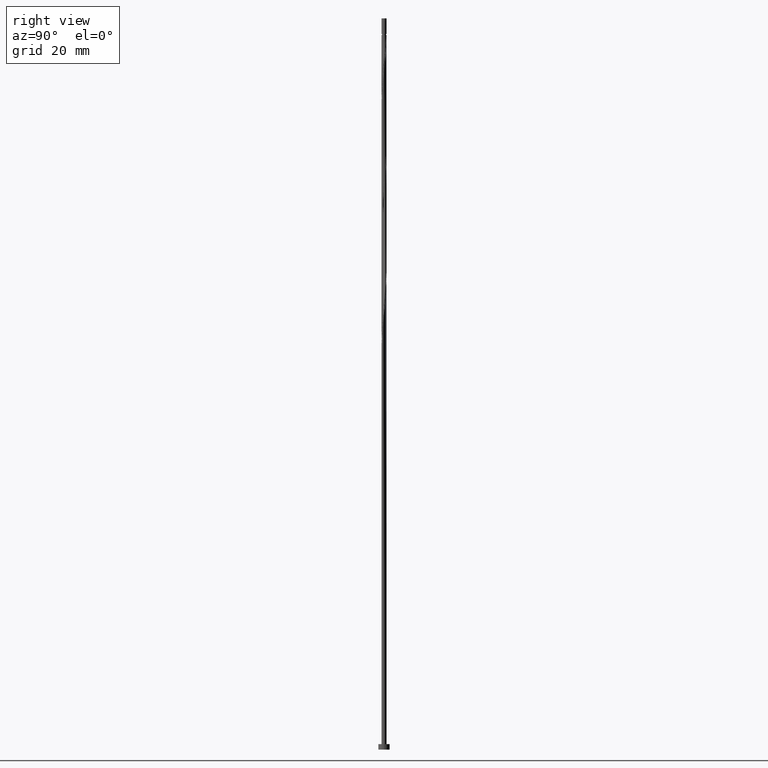
[diagram: clean part render]
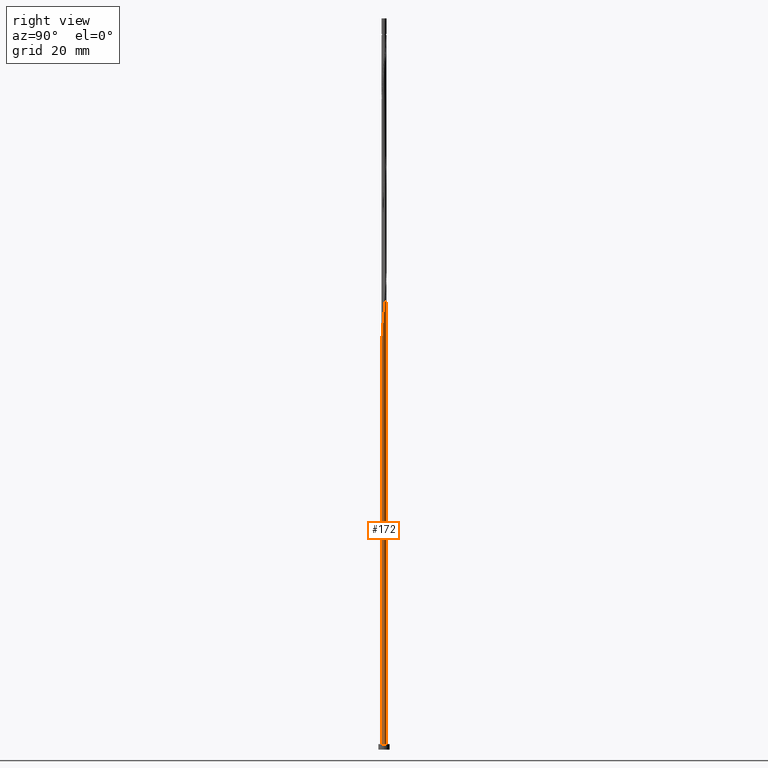
[diagram: same view with one face highlighted and labeled with its STEP entity id]
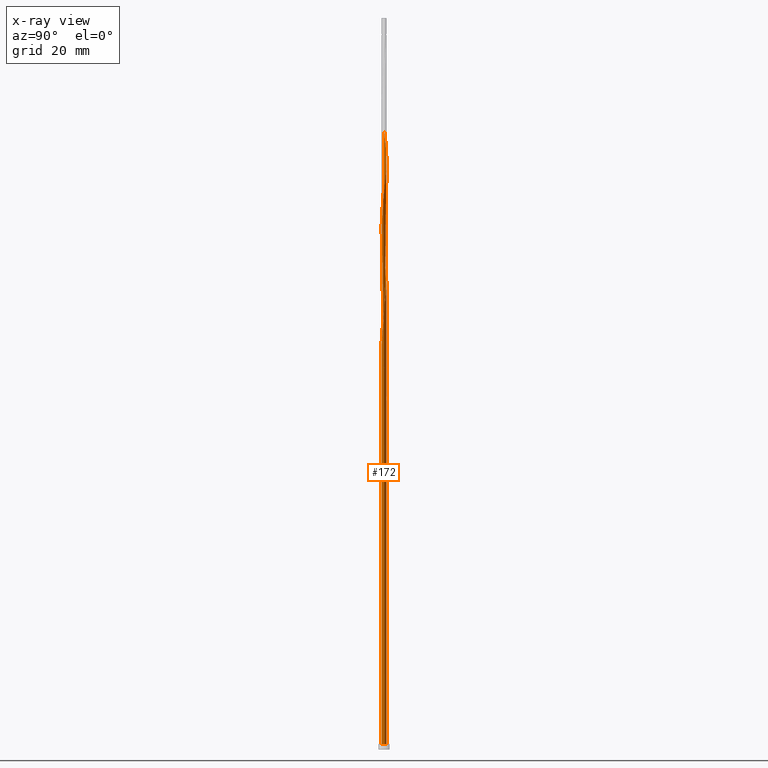
[diagram: x-ray of the same camera — body ghosted, the highlighted face saturated]
A machine part, right view. The second image highlights one B-rep face of the part: STEP entity #172.
The next image is the same camera in x-ray: the body ghosted, the highlighted face saturated — about 0% of this face is hidden behind the body in this view.
In plain terms, the highlighted cylindrical surface (bore or boss wall) has radius 0.55 mm, axis along (-0, -0, -1).
Its self-contained STEP definition (entity closure, byte-faithful):
#12 = CARTESIAN_POINT ( 'NONE',  ( -0.5490899195553593515, -0.03162689113223173670, 82.41916000802993381 ) ) ;
#29 = ORIENTED_EDGE ( 'NONE', *, *, #606, .T. ) ;
#32 = CARTESIAN_POINT ( 'NONE',  ( 0.4448250463926262666, 0.3234666568624947058, 98.17673576560569870 ) ) ;
#52 = CARTESIAN_POINT ( 'NONE',  ( -0.5179375947922877366, 0.1850422867908333435, 82.41916000802994802 ) ) ;
#69 = CARTESIAN_POINT ( 'NONE',  ( -0.4790226229432441585, 0.2702541890675806413, 106.6615842504541689 ) ) ;
#71 = CARTESIAN_POINT ( 'NONE',  ( -0.5357582445995461295, 0.1243507271535393560, 134.5403721292420585 ) ) ;
#86 = CARTESIAN_POINT ( 'NONE',  ( -0.1869451185450198005, 0.5232636644121024805, 76.96461455348449476 ) ) ;
#91 = CARTESIAN_POINT ( 'NONE',  ( 0.000000000000000000, 0.000000000000000000, 1.199999999999999956 ) ) ;
#124 = CARTESIAN_POINT ( 'NONE',  ( 0.5445426591040022357, 0.1105741030157383065, 123.0252206140905713 ) ) ;
#132 = LINE ( 'NONE', #224, #1389 ) ;
#161 = CARTESIAN_POINT ( 'NONE',  ( -0.5490899195553592405, 0.03162689113223179915, 83.63128122015115196 ) ) ;
#169 = CARTESIAN_POINT ( 'NONE',  ( -0.2568690281587664437, 0.4863314737632882800, 130.9040084928784609 ) ) ;
#172 = ADVANCED_FACE ( 'NONE', ( #1059 ), #969, .T. ) ;
#191 = CARTESIAN_POINT ( 'NONE',  ( -0.03195211761843817083, 0.5547363355878993652, 102.4191600080299764 ) ) ;
#199 = CARTESIAN_POINT ( 'NONE',  ( 0.1094486180817291210, 0.5390000000000005898, 76.35855394742387148 ) ) ;
#205 = DIRECTION ( 'NONE',  ( 1.000000000000000000, 0.000000000000000000, 0.000000000000000000 ) ) ;
#207 = CARTESIAN_POINT ( 'NONE',  ( -0.4448250463926262110, -0.3234666568624949279, 84.84340243227237011 ) ) ;
#209 =( BOUNDED_CURVE ( )  B_SPLINE_CURVE ( 2, ( #617, #388, #161, #1102, #52, #1478, #1368, #1350, #288, #487, #974, #625, #380, #748, #1232 ),
 .UNSPECIFIED., .F., .T. ) 
 B_SPLINE_CURVE_WITH_KNOTS ( ( 3, 2, 2, 2, 2, 2, 2, 3 ),
 ( 0.9295252162417512176, 0.9318181818181817677, 0.9431818181818182323, 0.9545454545454545858, 0.9659090909090909394, 0.9772727272727272929, 0.9886363636363636465, 1.000000000000000000 ),
 .UNSPECIFIED. ) 
 CURVE ( )  GEOMETRIC_REPRESENTATION_ITEM ( )  RATIONAL_B_SPLINE_CURVE ( ( 0.9061101570136073091, 0.9072237824201895284, 0.9090909090909671253, 0.8998376744372691416, 0.9090909090909671253, 0.8998376744372691416, 0.9090909090909671253, 0.8998376744372691416, 0.9090909090909671253, 0.8998376744372691416, 0.9090909090909671253, 0.8998376744372691416, 0.9090909090909671253, 0.8998376744372691416, 0.9090909090909671253 ) ) 
 REPRESENTATION_ITEM ( '' )  );
#210 = CARTESIAN_POINT ( 'NONE',  ( -0.1094486180817288573, 0.5390000000000008118, 103.0252206140905429 ) ) ;
#224 = CARTESIAN_POINT ( 'NONE',  ( -0.5500000000000000444, 0.000000000000000000, 160.0000000000000284 ) ) ;
#242 = CARTESIAN_POINT ( 'NONE',  ( 0.000000000000000000, 0.000000000000000000, 160.0000000000000284 ) ) ;
#249 = CARTESIAN_POINT ( 'NONE',  ( 0.3356754182106473916, 0.4356856821254376233, 99.38885697772691685 ) ) ;
#256 = CARTESIAN_POINT ( 'NONE',  ( 0.1869451185450196895, -0.5232636644121025915, 90.29794788681783757 ) ) ;
#260 = VERTEX_POINT ( 'NONE', #1190 ) ;
#265 = CARTESIAN_POINT ( 'NONE',  ( -0.2730332741166160426, -0.4839485210918138547, 86.66158425045418312 ) ) ;
#280 = CARTESIAN_POINT ( 'NONE',  ( 0.3267929377725131701, -0.4493992831144739686, 91.51006909893904151 ) ) ;
#288 = CARTESIAN_POINT ( 'NONE',  ( -0.3356754182106476692, 0.4356856821254377343, 79.99491758378749751 ) ) ;
#295 = CARTESIAN_POINT ( 'NONE',  ( -0.5500000000000009326, 5.328367375620320696E-16, 82.17576613478965442 ) ) ;
#299 = CARTESIAN_POINT ( 'NONE',  ( -0.4401659366941124141, 0.3391272445793576673, 132.7221903110602739 ) ) ;
#300 = LINE ( 'NONE', #1513, #1466 ) ;
#304 = CARTESIAN_POINT ( 'NONE',  ( 0.4790226229432441585, -0.2702541890675808633, 119.9949175837875117 ) ) ;
#320 = CARTESIAN_POINT ( 'NONE',  ( -0.1094486180817288851, 0.5390000000000008118, 76.35855394742387148 ) ) ;
#328 = CARTESIAN_POINT ( 'NONE',  ( -0.3267929377725131701, 0.4493992831144739686, 78.17673576560571291 ) ) ;
#335 = CARTESIAN_POINT ( 'NONE',  ( -0.3983175623046793512, -0.3874228431590615029, 85.44946303833299339 ) ) ;
#338 = VERTEX_POINT ( 'NONE', #854 ) ;
#357 = EDGE_CURVE ( 'NONE', #1205, #602, #209, .T. ) ;
#369 = CARTESIAN_POINT ( 'NONE',  ( -0.3983175623046793512, -0.3874228431590615029, 112.1161297049996364 ) ) ;
#380 = CARTESIAN_POINT ( 'NONE',  ( -0.04683866811629520260, 0.5480019517931414841, 77.57067515954510384 ) ) ;
#383 = CARTESIAN_POINT ( 'NONE',  ( 0.03195211761843825410, -0.5547363355878992541, 89.08582667469660521 ) ) ;
#384 = CARTESIAN_POINT ( 'NONE',  ( -0.5500000000000010436, -2.374395286679931804E-16, 135.5090994681229972 ) ) ;
#388 = CARTESIAN_POINT ( 'NONE',  ( -0.5500000000000009326, 0.01582653958810245967, 83.75257708867323458 ) ) ;
#401 = CARTESIAN_POINT ( 'NONE',  ( -0.4790226229432441585, 0.2702541890675806413, 133.3282509171208687 ) ) ;
#428 = CARTESIAN_POINT ( 'NONE',  ( 0.2568690281587662771, -0.4863314737632883356, 117.5706751595451038 ) ) ;
#429 = ORIENTED_EDGE ( 'NONE', *, *, #651, .F. ) ;
#442 = CARTESIAN_POINT ( 'NONE',  ( -0.5490899195553593515, -0.03162689113223173670, 109.0858266746966194 ) ) ;
#449 = CARTESIAN_POINT ( 'NONE',  ( 0.5536371800067164672, -0.04732032075127501347, 121.8130994019693389 ) ) ;
#457 = DIRECTION ( 'NONE',  ( -0.000000000000000000, -0.000000000000000000, -1.000000000000000000 ) ) ;
#466 = CARTESIAN_POINT ( 'NONE',  ( 0.5179375947922879586, 0.1850422867908331770, 123.6312812201511662 ) ) ;
#476 = CARTESIAN_POINT ( 'NONE',  ( -0.04683866811629521648, -0.5480019517931417061, 88.47976606863601035 ) ) ;
#479 = CARTESIAN_POINT ( 'NONE',  ( 0.4913325304805731819, 0.2595104705659281308, 124.2373418262117468 ) ) ;
#487 = CARTESIAN_POINT ( 'NONE',  ( -0.2730332741166158761, 0.4839485210918136326, 79.38885697772690264 ) ) ;
#499 = AXIS2_PLACEMENT_3D ( 'NONE', #91, #800, #205 ) ;
#500 = CARTESIAN_POINT ( 'NONE',  ( -0.1256294538510286940, -0.5412675679983839361, 87.87370546257541548 ) ) ;
#504 = CARTESIAN_POINT ( 'NONE',  ( 0.2730332741166158761, 0.4839485210918138547, 126.6615842504542115 ) ) ;
#510 = CARTESIAN_POINT ( 'NONE',  ( 0.2568690281587662771, -0.4863314737632883356, 90.90400849287840401 ) ) ;
#524 = CARTESIAN_POINT ( 'NONE',  ( -0.1094486180817288851, 0.5390000000000008118, 76.35855394742387148 ) ) ;
#525 = CARTESIAN_POINT ( 'NONE',  ( -0.5500000000000011546, 0.06299091006181750663, 135.0231395151516836 ) ) ;
#530 = CARTESIAN_POINT ( 'NONE',  ( -0.03195211761843817083, 0.5547363355878993652, 129.0858266746965910 ) ) ;
#535 = CARTESIAN_POINT ( 'NONE',  ( -0.5179375947922879586, -0.1850422867908333158, 110.2979478868178376 ) ) ;
#537 = CARTESIAN_POINT ( 'NONE',  ( 0.1256294538510287495, 0.5412675679983838251, 127.8737054625754013 ) ) ;
#546 = CARTESIAN_POINT ( 'NONE',  ( -0.3834794372333126811, 0.3942632638469158457, 105.4494630383329792 ) ) ;
#550 = CARTESIAN_POINT ( 'NONE',  ( -0.5357582445995461295, 0.1243507271535393560, 81.20703879590874408 ) ) ;
#561 = DIRECTION ( 'NONE',  ( 0.000000000000000000, -0.000000000000000000, -1.000000000000000000 ) ) ;
#564 = CARTESIAN_POINT ( 'NONE',  ( -0.5178793091923759029, 0.2013811335558037541, 107.2676448565147922 ) ) ;
#596 = CARTESIAN_POINT ( 'NONE',  ( -0.5500000000000009326, -0.01582653958810216130, 82.29786413950785118 ) ) ;
#602 = VERTEX_POINT ( 'NONE', #199 ) ;
#606 = EDGE_CURVE ( 'NONE', #1192, #602, #1146, .T. ) ;
#617 = CARTESIAN_POINT ( 'NONE',  ( -0.5500000000000009326, -4.674006469842387406E-16, 83.87467509339141714 ) ) ;
#622 = CARTESIAN_POINT ( 'NONE',  ( 0.5536371800067164672, -0.04732032075127501347, 95.14643273530268175 ) ) ;
#625 = CARTESIAN_POINT ( 'NONE',  ( -0.1256294538510286662, 0.5412675679983837140, 78.17673576560567028 ) ) ;
#635 = CIRCLE ( 'NONE', #499, 0.5500000000000000444 ) ;
#651 = EDGE_CURVE ( 'NONE', #1209, #338, #300, .T. ) ;
#657 = CARTESIAN_POINT ( 'NONE',  ( -0.3834794372333126811, 0.3942632638469158457, 132.1161297049996506 ) ) ;
#661 = CARTESIAN_POINT ( 'NONE',  ( -0.1993313639838223683, -0.5126080445450988954, 113.9343115231814778 ) ) ;
#666 = CARTESIAN_POINT ( 'NONE',  ( -0.2568690281587664437, 0.4863314737632882800, 104.2373418262117468 ) ) ;
#669 =( BOUNDED_CURVE ( )  B_SPLINE_CURVE ( 2, ( #1435, #596, #12, #1287, #692, #1056, #207, #335, #818, #265, #980, #500, #476, #383, #1228, #256, #510, #280, #859, #866, #988, #753, #760, #622, #997, #1107, #1244, #840, #32, #1335, #249, #726, #1211, #967, #751, #191, #210, #790, #666, #1516, #546, #1166, #69, #564, #1406, #1051, #442, #928, #535, #1080, #954, #369, #1207, #1071, #661, #1290, #1152, #776, #1506, #783, #428, #675, #1025, #1144, #304, #915, #729, #449, #1066, #124, #466, #479, #1238, #1022, #1141, #504, #894, #537, #871, #530, #1148, #1249, #169, #1379, #657, #299, #401, #1268, #71, #525, #384 ),
 .UNSPECIFIED., .F., .T. ) 
 B_SPLINE_CURVE_WITH_KNOTS ( ( 3, 2, 2, 2, 2, 2, 2, 2, 2, 2, 2, 2, 2, 2, 2, 2, 2, 2, 2, 2, 2, 2, 2, 2, 2, 2, 2, 2, 2, 2, 2, 2, 2, 2, 2, 2, 2, 2, 2, 2, 2, 2, 2, 2, 2, 3 ),
 ( 0.05452521624175118292, 0.05681818181818176772, 0.06818181818181823228, 0.07954545454545458583, 0.09090909090909093937, 0.1022727272727272929, 0.1136363636363636465, 0.1250000000000000000, 0.1363636363636363535, 0.1477272727272727071, 0.1590909090909090606, 0.1704545454545454142, 0.1818181818181817677, 0.1931818181818182323, 0.2045454545454545858, 0.2159090909090909394, 0.2272727272727272929, 0.2386363636363636465, 0.2500000000000000000, 0.2613636363636363535, 0.2727272727272727071, 0.2840909090909090606, 0.2954545454545454142, 0.3068181818181817677, 0.3181818181818182323, 0.3295454545454545858, 0.3409090909090909394, 0.3522727272727272929, 0.3636363636363636465, 0.3750000000000000000, 0.3863636363636363535, 0.3977272727272727071, 0.4090909090909090606, 0.4204545454545454142, 0.4318181818181817677, 0.4431818181818182323, 0.4545454545454545858, 0.4659090909090909394, 0.4772727272727272929, 0.4886363636363636465, 0.5000000000000000000, 0.5113636363636363535, 0.5227272727272727071, 0.5340909090909091717, 0.5454545454545454142, 0.5545252162417513286 ),
 .UNSPECIFIED. ) 
 CURVE ( )  GEOMETRIC_REPRESENTATION_ITEM ( )  RATIONAL_B_SPLINE_CURVE ( ( 0.9061101570136075312, 0.9072237824201898615, 0.9090909090909674584, 0.8998376744372692526, 0.9090909090909674584, 0.8998376744372692526, 0.9090909090909674584, 0.8998376744372692526, 0.9090909090909674584, 0.8998376744372692526, 0.9090909090909674584, 0.8998376744372692526, 0.9090909090909674584, 0.8998376744372692526, 0.9090909090909674584, 0.8998376744372692526, 0.9090909090909674584, 0.8998376744372692526, 0.9090909090909674584, 0.8998376744372692526, 0.9090909090909674584, 0.8998376744372692526, 0.9090909090909674584, 0.8998376744372692526, 0.9090909090909674584, 0.8998376744372692526, 0.9090909090909674584, 0.8998376744372692526, 0.9090909090909674584, 0.8998376744372692526, 0.9090909090909674584, 0.8998376744372692526, 0.9090909090909674584, 0.8998376744372692526, 0.9090909090909674584, 0.8998376744372692526, 0.9090909090909674584, 0.8998376744372692526, 0.9090909090909674584, 0.8998376744372692526, 0.9090909090909674584, 0.8998376744372692526, 0.9090909090909674584, 0.8998376744372692526, 0.9090909090909674584, 0.8998376744372692526, 0.9090909090909674584, 0.8998376744372692526, 0.9090909090909674584, 0.8998376744372692526, 0.9090909090909674584, 0.8998376744372692526, 0.9090909090909674584, 0.8998376744372692526, 0.9090909090909674584, 0.8998376744372692526, 0.9090909090909674584, 0.8998376744372692526, 0.9090909090909674584, 0.8998376744372692526, 0.9090909090909674584, 0.8998376744372692526, 0.9090909090909674584, 0.8998376744372692526, 0.9090909090909674584, 0.8998376744372692526, 0.9090909090909674584, 0.8998376744372692526, 0.9090909090909674584, 0.8998376744372692526, 0.9090909090909674584, 0.8998376744372692526, 0.9090909090909674584, 0.8998376744372692526, 0.9090909090909674584, 0.8998376744372692526, 0.9090909090909674584, 0.8998376744372692526, 0.9090909090909674584, 0.8998376744372692526, 0.9090909090909674584, 0.8998376744372692526, 0.9090909090909674584, 0.8998376744372692526, 0.9090909090909674584, 0.8998376744372692526, 0.9090909090909674584, 0.8998376744372692526, 0.9090909090909674584, 0.9017048011080468495, 0.9061101570136075312 ) ) 
 REPRESENTATION_ITEM ( '' )  );
#672 = CARTESIAN_POINT ( 'NONE',  ( 0.000000000000000000, 0.000000000000000000, 76.35855394742387148 ) ) ;
#675 = CARTESIAN_POINT ( 'NONE',  ( 0.3267929377725131701, -0.4493992831144739686, 118.1767357656057129 ) ) ;
#680 = EDGE_CURVE ( 'NONE', #1192, #1209, #1179, .T. ) ;
#685 = CARTESIAN_POINT ( 'NONE',  ( -0.3834794372333126811, 0.3942632638469158457, 78.78279637166629357 ) ) ;
#692 = CARTESIAN_POINT ( 'NONE',  ( -0.5179375947922879586, -0.1850422867908333158, 83.63128122015116617 ) ) ;
#726 = CARTESIAN_POINT ( 'NONE',  ( 0.2730332741166158761, 0.4839485210918138547, 99.99491758378754014 ) ) ;
#729 = CARTESIAN_POINT ( 'NONE',  ( 0.5357582445995461295, -0.1243507271535393283, 121.2070387959087299 ) ) ;
#735 = AXIS2_PLACEMENT_3D ( 'NONE', #242, #1214, #1540 ) ;
#740 = ORIENTED_EDGE ( 'NONE', *, *, #1047, .T. ) ;
#748 = CARTESIAN_POINT ( 'NONE',  ( 0.03195211761843826104, 0.5547363355878989211, 76.96461455348448055 ) ) ;
#751 = CARTESIAN_POINT ( 'NONE',  ( 0.04683866811629528587, 0.5480019517931417061, 101.8130994019693532 ) ) ;
#753 = CARTESIAN_POINT ( 'NONE',  ( 0.5178793091923760139, -0.2013811335558035875, 93.93431152318146360 ) ) ;
#760 = CARTESIAN_POINT ( 'NONE',  ( 0.5357582445995461295, -0.1243507271535393283, 94.54037212924203004 ) ) ;
#776 = CARTESIAN_POINT ( 'NONE',  ( 0.03195211761843825410, -0.5547363355878992541, 115.7524933413632908 ) ) ;
#780 = CARTESIAN_POINT ( 'NONE',  ( -0.5178793091923759029, 0.2013811335558037541, 80.60097818984813500 ) ) ;
#783 = CARTESIAN_POINT ( 'NONE',  ( 0.1869451185450196895, -0.5232636644121025915, 116.9646145534845090 ) ) ;
#790 = CARTESIAN_POINT ( 'NONE',  ( -0.1869451185450198005, 0.5232636644121024805, 103.6312812201511520 ) ) ;
#800 = DIRECTION ( 'NONE',  ( 0.000000000000000000, 0.000000000000000000, 1.000000000000000000 ) ) ;
#818 = CARTESIAN_POINT ( 'NONE',  ( -0.3356754182106476136, -0.4356856821254375678, 86.05552364439360247 ) ) ;
#837 = AXIS2_PLACEMENT_3D ( 'NONE', #1046, #1521, #1315 ) ;
#840 = CARTESIAN_POINT ( 'NONE',  ( 0.4913325304805731819, 0.2595104705659281308, 97.57067515954513226 ) ) ;
#854 = CARTESIAN_POINT ( 'NONE',  ( -0.5500000000000000444, 0.000000000000000000, 1.199999999999999956 ) ) ;
#859 = CARTESIAN_POINT ( 'NONE',  ( 0.3834794372333126811, -0.3942632638469158457, 92.11612970499965058 ) ) ;
#866 = CARTESIAN_POINT ( 'NONE',  ( 0.4401659366941123586, -0.3391272445793577228, 92.72219031106025966 ) ) ;
#871 = CARTESIAN_POINT ( 'NONE',  ( 0.04683866811629528587, 0.5480019517931417061, 128.4797660686359677 ) ) ;
#888 = CARTESIAN_POINT ( 'NONE',  ( -0.5500000000000009326, -4.674006469842387406E-16, 83.87467509339143135 ) ) ;
#894 = CARTESIAN_POINT ( 'NONE',  ( 0.1993313639838222018, 0.5126080445450988954, 127.2676448565148206 ) ) ;
#895 = CARTESIAN_POINT ( 'NONE',  ( -0.4790226229432441585, 0.2702541890675806413, 79.99491758378749751 ) ) ;
#909 = CIRCLE ( 'NONE', #837, 0.5500000000000000444 ) ;
#915 = CARTESIAN_POINT ( 'NONE',  ( 0.5178793091923760139, -0.2013811335558035875, 120.6009781898481208 ) ) ;
#924 = DIRECTION ( 'NONE',  ( -0.000000000000000000, -0.000000000000000000, -1.000000000000000000 ) ) ;
#928 = CARTESIAN_POINT ( 'NONE',  ( -0.5445426591040022357, -0.1105741030157383759, 109.6918872807572285 ) ) ;
#954 = CARTESIAN_POINT ( 'NONE',  ( -0.4448250463926262110, -0.3234666568624949279, 111.5100690989390557 ) ) ;
#967 = CARTESIAN_POINT ( 'NONE',  ( 0.1256294538510287495, 0.5412675679983838251, 101.2070387959087299 ) ) ;
#969 = CYLINDRICAL_SURFACE ( 'NONE', #735, 0.5500000000000000444 ) ;
#974 = CARTESIAN_POINT ( 'NONE',  ( -0.1993313639838222295, 0.5126080445450987844, 78.78279637166627936 ) ) ;
#980 = CARTESIAN_POINT ( 'NONE',  ( -0.1993313639838223683, -0.5126080445450988954, 87.26764485651480641 ) ) ;
#988 = CARTESIAN_POINT ( 'NONE',  ( 0.4790226229432441585, -0.2702541890675808633, 93.32825091712088295 ) ) ;
#997 = CARTESIAN_POINT ( 'NONE',  ( 0.5490899195553593515, 0.03162689113223167425, 95.75249334136326240 ) ) ;
#1016 = CARTESIAN_POINT ( 'NONE',  ( -0.4401659366941124141, 0.3391272445793576673, 79.38885697772691685 ) ) ;
#1022 = CARTESIAN_POINT ( 'NONE',  ( 0.3983175623046794622, 0.3874228431590613364, 125.4494630383329792 ) ) ;
#1025 = CARTESIAN_POINT ( 'NONE',  ( 0.3834794372333126811, -0.3942632638469158457, 118.7827963716663078 ) ) ;
#1039 = CARTESIAN_POINT ( 'NONE',  ( -0.5500000000000011546, 0.06299091006181789520, 81.68980618181836917 ) ) ;
#1046 = CARTESIAN_POINT ( 'NONE',  ( 0.000000000000000000, 0.000000000000000000, 1.199999999999999956 ) ) ;
#1047 = EDGE_CURVE ( 'NONE', #338, #260, #635, .T. ) ;
#1051 = CARTESIAN_POINT ( 'NONE',  ( -0.5536371800067164672, 0.04732032075127503429, 108.4797660686360103 ) ) ;
#1056 = CARTESIAN_POINT ( 'NONE',  ( -0.4913325304805731264, -0.2595104705659282973, 84.23734182621176103 ) ) ;
#1059 = FACE_OUTER_BOUND ( 'NONE', #1090, .T. ) ;
#1066 = CARTESIAN_POINT ( 'NONE',  ( 0.5490899195553593515, 0.03162689113223167425, 122.4191600080299480 ) ) ;
#1071 = CARTESIAN_POINT ( 'NONE',  ( -0.2730332741166160426, -0.4839485210918138547, 113.3282509171208687 ) ) ;
#1077 = ORIENTED_EDGE ( 'NONE', *, *, #1534, .F. ) ;
#1080 = CARTESIAN_POINT ( 'NONE',  ( -0.4913325304805731264, -0.2595104705659282973, 110.9040084928784466 ) ) ;
#1090 = EDGE_LOOP ( 'NONE', ( #1217, #1077, #1507, #740, #1515, #429, #1444, #29, #1358 ) ) ;
#1102 = CARTESIAN_POINT ( 'NONE',  ( -0.5445426591040019026, 0.1105741030157384452, 83.02522061409055709 ) ) ;
#1107 = CARTESIAN_POINT ( 'NONE',  ( 0.5445426591040022357, 0.1105741030157383065, 96.35855394742388569 ) ) ;
#1141 = CARTESIAN_POINT ( 'NONE',  ( 0.3356754182106473916, 0.4356856821254376233, 126.0555236443936025 ) ) ;
#1144 = CARTESIAN_POINT ( 'NONE',  ( 0.4401659366941123586, -0.3391272445793577228, 119.3888569777269453 ) ) ;
#1146 = CIRCLE ( 'NONE', #1275, 0.5500000000000000444 ) ;
#1148 = CARTESIAN_POINT ( 'NONE',  ( -0.1094486180817288573, 0.5390000000000008118, 129.6918872807572143 ) ) ;
#1152 = CARTESIAN_POINT ( 'NONE',  ( -0.04683866811629521648, -0.5480019517931417061, 115.1464327353026675 ) ) ;
#1166 = CARTESIAN_POINT ( 'NONE',  ( -0.4401659366941124141, 0.3391272445793576673, 106.0555236443936025 ) ) ;
#1174 = CARTESIAN_POINT ( 'NONE',  ( -0.5500000000000009326, 5.328367375620320696E-16, 82.17576613478965442 ) ) ;
#1179 =( BOUNDED_CURVE ( )  B_SPLINE_CURVE ( 2, ( #320, #86, #1410, #328, #685, #1016, #895, #780, #550, #1039, #1174 ),
 .UNSPECIFIED., .F., .T. ) 
 B_SPLINE_CURVE_WITH_KNOTS ( ( 3, 2, 2, 2, 2, 3 ),
 ( 0.000000000000000000, 0.01136363636363635354, 0.02272727272727270709, 0.03409090909090906063, 0.04545454545454541417, 0.05452521624175118292 ),
 .UNSPECIFIED. ) 
 CURVE ( )  GEOMETRIC_REPRESENTATION_ITEM ( )  RATIONAL_B_SPLINE_CURVE ( ( 0.9090909090909674584, 0.8998376744372692526, 0.9090909090909674584, 0.8998376744372692526, 0.9090909090909674584, 0.8998376744372692526, 0.9090909090909674584, 0.8998376744372692526, 0.9090909090909674584, 0.9017048011080468495, 0.9061101570136075312 ) ) 
 REPRESENTATION_ITEM ( '' )  );
#1190 = CARTESIAN_POINT ( 'NONE',  ( 0.5500000000000000444, 0.000000000000000000, 1.199999999999999956 ) ) ;
#1192 = VERTEX_POINT ( 'NONE', #524 ) ;
#1205 = VERTEX_POINT ( 'NONE', #888 ) ;
#1207 = CARTESIAN_POINT ( 'NONE',  ( -0.3356754182106476136, -0.4356856821254375678, 112.7221903110602597 ) ) ;
#1209 = VERTEX_POINT ( 'NONE', #295 ) ;
#1211 = CARTESIAN_POINT ( 'NONE',  ( 0.1993313639838222018, 0.5126080445450988954, 100.6009781898481350 ) ) ;
#1214 = DIRECTION ( 'NONE',  ( -0.000000000000000000, -0.000000000000000000, -1.000000000000000000 ) ) ;
#1217 = ORIENTED_EDGE ( 'NONE', *, *, #1375, .F. ) ;
#1228 = CARTESIAN_POINT ( 'NONE',  ( 0.1094486180817289128, -0.5390000000000008118, 89.69188728075718586 ) ) ;
#1232 = CARTESIAN_POINT ( 'NONE',  ( 0.1094486180817291210, 0.5390000000000005898, 76.35855394742385727 ) ) ;
#1238 = CARTESIAN_POINT ( 'NONE',  ( 0.4448250463926262666, 0.3234666568624947058, 124.8434024322723843 ) ) ;
#1244 = CARTESIAN_POINT ( 'NONE',  ( 0.5179375947922879586, 0.1850422867908331770, 96.96461455348449476 ) ) ;
#1249 = CARTESIAN_POINT ( 'NONE',  ( -0.1869451185450198005, 0.5232636644121024805, 130.2979478868178376 ) ) ;
#1268 = CARTESIAN_POINT ( 'NONE',  ( -0.5178793091923759029, 0.2013811335558037541, 133.9343115231814352 ) ) ;
#1275 = AXIS2_PLACEMENT_3D ( 'NONE', #672, #561, #1491 ) ;
#1287 = CARTESIAN_POINT ( 'NONE',  ( -0.5445426591040022357, -0.1105741030157383759, 83.02522061409054288 ) ) ;
#1290 = CARTESIAN_POINT ( 'NONE',  ( -0.1256294538510286940, -0.5412675679983839361, 114.5403721292420727 ) ) ;
#1315 = DIRECTION ( 'NONE',  ( 1.000000000000000000, 0.000000000000000000, 0.000000000000000000 ) ) ;
#1335 = CARTESIAN_POINT ( 'NONE',  ( 0.3983175623046794622, 0.3874228431590613364, 98.78279637166630778 ) ) ;
#1344 = VERTEX_POINT ( 'NONE', #1427 ) ;
#1350 = CARTESIAN_POINT ( 'NONE',  ( -0.3983175623046791292, 0.3874228431590614474, 80.60097818984812079 ) ) ;
#1358 = ORIENTED_EDGE ( 'NONE', *, *, #357, .F. ) ;
#1368 = CARTESIAN_POINT ( 'NONE',  ( -0.4448250463926261555, 0.3234666568624949279, 81.20703879590872987 ) ) ;
#1375 = EDGE_CURVE ( 'NONE', #1344, #1205, #132, .T. ) ;
#1379 = CARTESIAN_POINT ( 'NONE',  ( -0.3267929377725131701, 0.4493992831144739686, 131.5100690989390557 ) ) ;
#1389 = VECTOR ( 'NONE', #457, 1000.000000000000000 ) ;
#1406 = CARTESIAN_POINT ( 'NONE',  ( -0.5357582445995461295, 0.1243507271535393560, 107.8737054625754155 ) ) ;
#1410 = CARTESIAN_POINT ( 'NONE',  ( -0.2568690281587664437, 0.4863314737632882800, 77.57067515954507542 ) ) ;
#1427 = CARTESIAN_POINT ( 'NONE',  ( -0.5500000000000010436, -2.374395286679931804E-16, 135.5090994681229972 ) ) ;
#1435 = CARTESIAN_POINT ( 'NONE',  ( -0.5500000000000009326, 5.328367375620320696E-16, 82.17576613478965442 ) ) ;
#1444 = ORIENTED_EDGE ( 'NONE', *, *, #680, .F. ) ;
#1466 = VECTOR ( 'NONE', #924, 1000.000000000000000 ) ;
#1470 = EDGE_CURVE ( 'NONE', #260, #338, #909, .T. ) ;
#1478 = CARTESIAN_POINT ( 'NONE',  ( -0.4913325304805729044, 0.2595104705659283528, 81.81309940196931052 ) ) ;
#1491 = DIRECTION ( 'NONE',  ( -1.000000000000000000, 0.000000000000000000, 0.000000000000000000 ) ) ;
#1506 = CARTESIAN_POINT ( 'NONE',  ( 0.1094486180817289128, -0.5390000000000008118, 116.3585539474238715 ) ) ;
#1507 = ORIENTED_EDGE ( 'NONE', *, *, #651, .T. ) ;
#1513 = CARTESIAN_POINT ( 'NONE',  ( -0.5500000000000000444, 0.000000000000000000, 160.0000000000000284 ) ) ;
#1515 = ORIENTED_EDGE ( 'NONE', *, *, #1470, .T. ) ;
#1516 = CARTESIAN_POINT ( 'NONE',  ( -0.3267929377725131701, 0.4493992831144739686, 104.8434024322723417 ) ) ;
#1521 = DIRECTION ( 'NONE',  ( 0.000000000000000000, 0.000000000000000000, 1.000000000000000000 ) ) ;
#1534 = EDGE_CURVE ( 'NONE', #1209, #1344, #669, .T. ) ;
#1540 = DIRECTION ( 'NONE',  ( -1.000000000000000000, 0.000000000000000000, 0.000000000000000000 ) ) ;